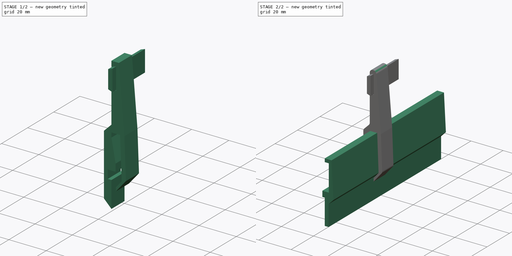
[diagram: build sequence overview — one tinted view per stage of 2, left to right]
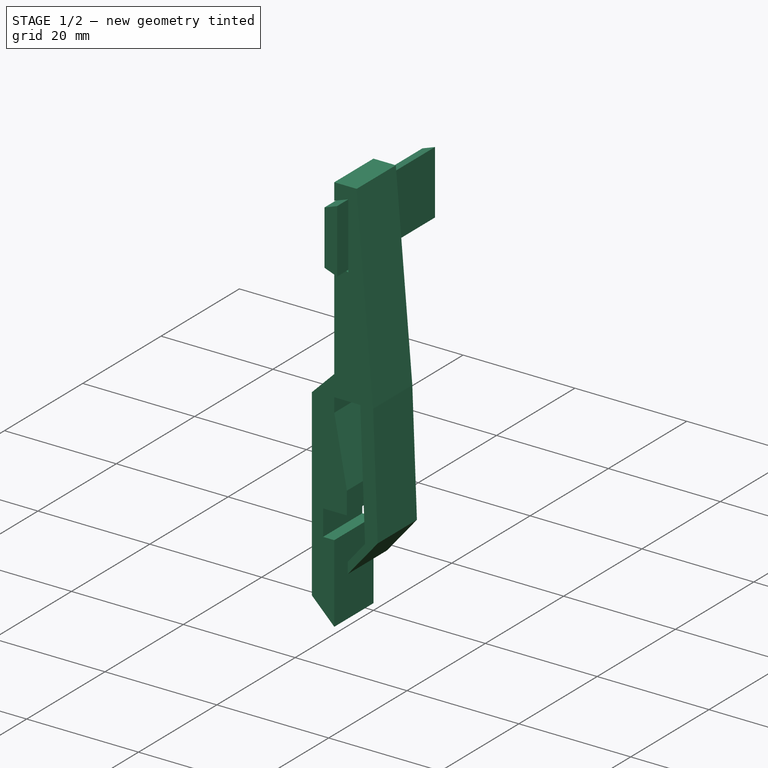
[diagram: stage 1 of 2 — iso view after this stage's code; geometry added in this stage tinted green]
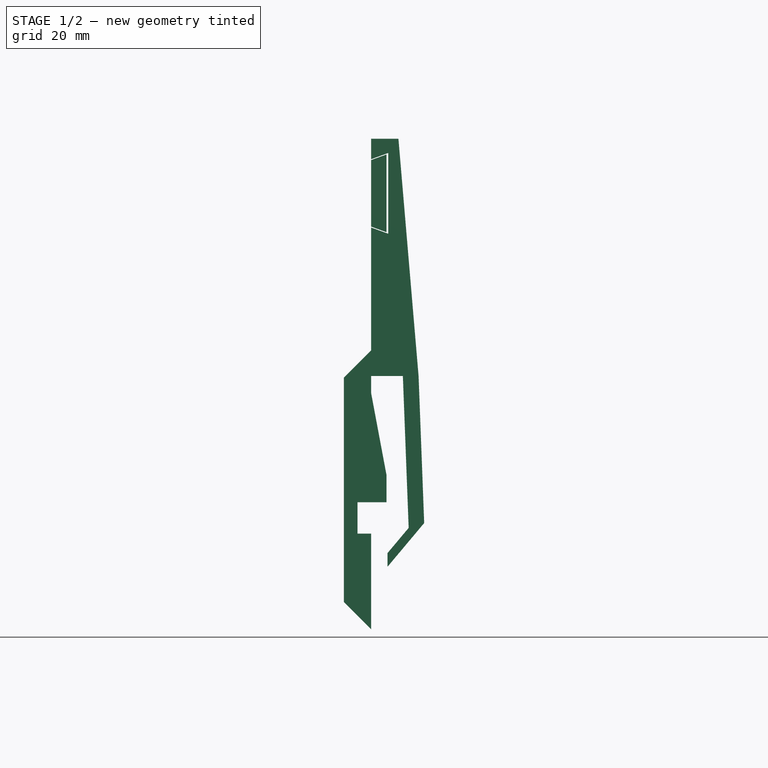
[diagram: stage 1 of 2 — front view after this stage's code; geometry added in this stage tinted green]
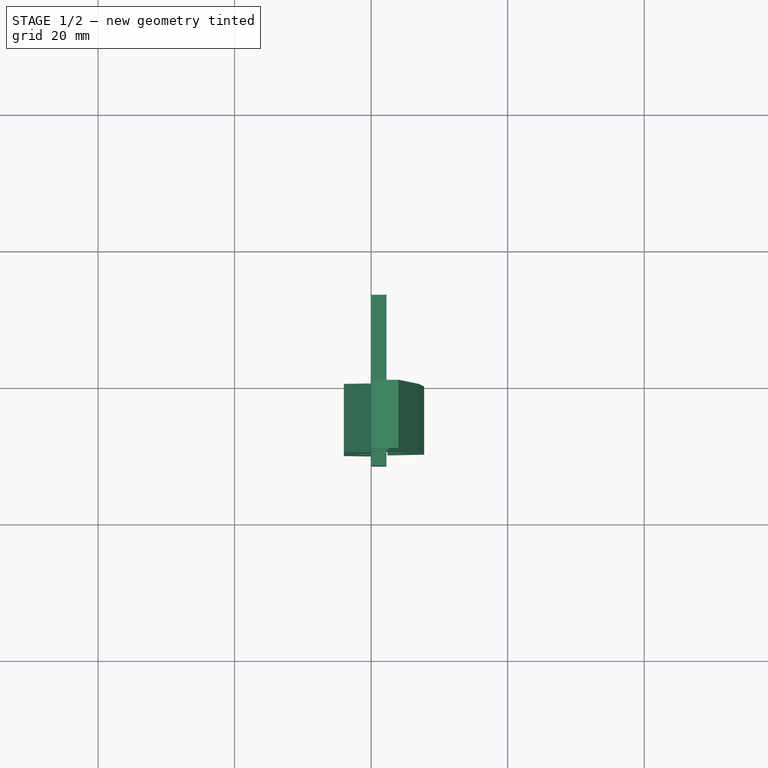
[diagram: stage 1 of 2 — top view after this stage's code; geometry added in this stage tinted green]
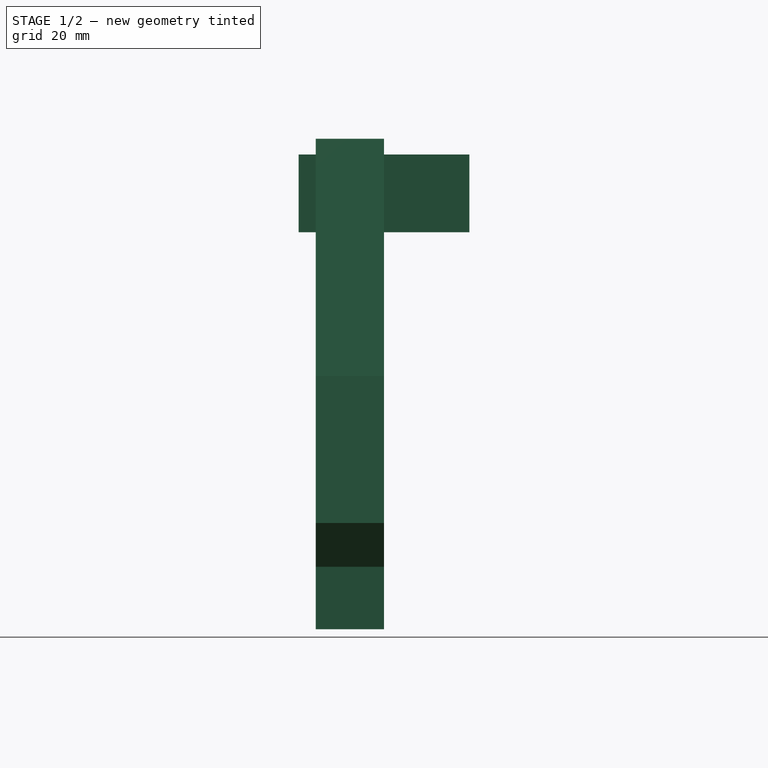
[diagram: stage 1 of 2 — right view after this stage's code; geometry added in this stage tinted green]
FCSTD DOCUMENT  (FreeCAD 0.19R)
Label: FridgeFence
License: All rights reserved
LicenseURL: http://en.wikipedia.org/wiki/All_rights_reserved
objects: Sketcher::SketchObject×3, PartDesign::Pad×3, PartDesign::Body×3, App::Part×3, PartDesign::Fillet×1
note: 14 computed .brp shape members not serialized (recipe doc carries the construction recipe); baked Part::Feature solids carry a one-line shape summary decoded from their .brp

FEATURE [PartDesign::Body] Body
  Group = -> [Sketch,Pad]
  Origin = -> Origin001
  Tip = -> Pad
FEATURE [App::Part] Part  label="Fridge"
  Group = -> [Body]
  Origin = -> Origin
FEATURE [Sketcher::SketchObject] Sketch001
  FullyConstrained = true
  MapMode = 5
  Placement = pos=(0,0,0) rot=(1,0,0;1.5708rad)
  Support = -> [XZ_Plane003]
  sketch-geometry (23):
    g0: LineSegment StartX=4.65 StartY=0.25 StartZ=0 EndX=0 EndY=0.25 EndZ=0
    g1: LineSegment StartX=0 StartY=0.25 StartZ=0 EndX=0 EndY=-2.25 EndZ=0
    g2: LineSegment StartX=2.25 StartY=-18.25 StartZ=0 EndX=-2 EndY=-18.25 EndZ=0
    g3: LineSegment StartX=-2 StartY=-18.25 StartZ=0 EndX=-2 EndY=-22.85 EndZ=0
    g4: LineSegment StartX=-2 StartY=-22.85 StartZ=0 EndX=0 EndY=-22.85 EndZ=0
    g5: LineSegment StartX=0 StartY=-22.85 StartZ=0 EndX=0 EndY=-36.85 EndZ=0
    g6: LineSegment StartX=4.65 StartY=0.25 StartZ=0 EndX=5.5 EndY=-22 EndZ=0
    g7: LineSegment StartX=5.5 StartY=-22 StartZ=0 EndX=2.4 EndY=-25.6944 EndZ=0
    g8: LineSegment StartX=2.4 StartY=-25.6944 StartZ=0 EndX=2.4 EndY=-27.6944 EndZ=0
    g9: LineSegment StartX=2.4 StartY=-27.6944 StartZ=0 EndX=7.77292 EndY=-21.2912 EndZ=0
    g10: LineSegment StartX=7.77292 StartY=-21.2912 StartZ=0 EndX=6.95 EndY=0.25 EndZ=0
    g11: LineSegment StartX=6.95 StartY=0.25 StartZ=0 EndX=4 EndY=35 EndZ=0
    g12: LineSegment StartX=4 StartY=35 StartZ=0 EndX=0 EndY=35 EndZ=0
    g13: LineSegment StartX=0 StartY=35 StartZ=0 EndX=0 EndY=32 EndZ=0
    g14: LineSegment StartX=0 StartY=32 StartZ=0 EndX=2.5 EndY=32.9099 EndZ=0
    g15: LineSegment StartX=2.5 StartY=32.9099 StartZ=0 EndX=2.5 EndY=21.0901 EndZ=0
    g16: LineSegment StartX=2.5 StartY=21.0901 StartZ=0 EndX=0 EndY=22 EndZ=0
    g17: LineSegment StartX=0 StartY=22 StartZ=0 EndX=0 EndY=4 EndZ=0
    g18: LineSegment StartX=0 StartY=4 StartZ=0 EndX=-4 EndY=9e-16 EndZ=0
    g19: LineSegment StartX=-4 StartY=9e-16 StartZ=0 EndX=-4 EndY=-32.85 EndZ=0
    g20: LineSegment StartX=-4 StartY=-32.85 StartZ=0 EndX=0 EndY=-36.85 EndZ=0
    g21: LineSegment StartX=0 StartY=-2.25 StartZ=0 EndX=2.25 EndY=-14.25 EndZ=0
    g22: LineSegment StartX=2.25 StartY=-18.25 StartZ=0 EndX=2.25 EndY=-14.25 EndZ=0
  constraints (69):
    c: Horizontal(g0)
    c: Coincident(g1,g0)
    c: Vertical(g1)
    c: Horizontal(g2)
    c: Coincident(g3,g2)
    c: Vertical(g3)
    c: Coincident(g4,g3)
    c: Horizontal(g4)
    c: Coincident(g5,g4)
    c: Vertical(g5)
    c: Coincident(g6,g0)
    c: Coincident(g7,g6)
    c: Coincident(g8,g7)
    c: Vertical(g8)
    c: Coincident(g9,g8)
    c: Coincident(g10,g9)
    c: Coincident(g11,g10)
    c: Coincident(g12,g11)
    c: PointOnObject(g12,g-2)
    c: Coincident(g13,g12)
    c: Vertical(g13)
    c: Coincident(g14,g13)
    c: Coincident(g15,g14)
    c: Vertical(g15)
    c: Coincident(g16,g15)
    c: PointOnObject(g16,g-2)
    c: Coincident(g17,g16)
    c: Vertical(g17)
    c: Coincident(g18,g17)
    c: PointOnObject(g18,g-1)
    c: Coincident(g19,g18)
    c: Vertical(g19)
    c: Coincident(g20,g19)
    c: Coincident(g20,g5)
    c: DistanceY(g1,g1) = 2.5
    c: DistanceY(g-1,g0) = 0.25
    c: Angle(g5,g20) = 0.785398
    c: Angle(g19,g18) = 2.35619
    c: DistanceY(g6,g-1) = 22
    c: DistanceX(g-1,g6) = 5.5
    c: Coincident(g21,g1)
    c: Coincident(g22,g2)
    c: Coincident(g22,g21)
    c: Vertical(g22)
    c: DistanceY(g22,g22) = 4
    c: DistanceY(g3,g3) = 4.6
    c: DistanceX(g5,g8) = 2.4
    c: DistanceX(g-1,g5) = 0
    c: DistanceX(g0,g-1) = 0
    c: Parallel(g10,g6)
    c: Parallel(g9,g7)
    c: DistanceY(g8,g8) = 2
    c: DistanceX(g19,g3) = 2
    c: DistanceY(g5,g5) = 14
    c: Angle(g9,g8) = 0.698132
    c: DistanceX(g-1,g2) = 2.25
    c: DistanceY(g2,g-1) = 18.25
    c: DistanceX(g0,g0) = 4.65
    c: DistanceX(g0,g10) = 2.3
    c: DistanceY(g0,g10) = 0
    c: DistanceX(g3,g-1) = 2
    c: DistanceY(g-1,g12) = 35
    c: DistanceY(g13,g12) = 3
    c: Angle(g14,g13) = 1.22173
    c: Angle(g17,g16) = 1.22173
    c: DistanceX(g13,g14) = 2.5
    c: Horizontal(g12)
    c: DistanceY(g16,g13) = 10
    c: DistanceX(g12,g12) = 4
FEATURE [PartDesign::Pad] Pad001
  Direction = (1,1,1)
  Length = 10
  Length2 = 100
  Placement = pos=(0,0,0) rot=(1,0,0;1.5708rad)
  Profile = -> Sketch001
  Type = 0
FEATURE [PartDesign::Body] Body001
  Group = -> [Sketch001,Pad001,Fillet]
  Origin = -> Origin003
  Tip = -> Fillet
FEATURE [App::Part] Part001  label="Support"
  Group = -> [Body001]
  Origin = -> Origin002
FEATURE [Sketcher::SketchObject] Sketch002
  FullyConstrained = true
  MapMode = 5
  Placement = pos=(0,0,0) rot=(1,0,0;1.5708rad)
  Support = -> [XZ_Plane]
  sketch-geometry (5):
    g0: LineSegment StartX=0 StartY=31.88 StartZ=0 EndX=2.25 EndY=32.6989 EndZ=0
    g1: LineSegment StartX=2.25 StartY=32.6989 StartZ=0 EndX=2.25 EndY=21.3111 EndZ=0
    g2: LineSegment StartX=2.25 StartY=21.3111 StartZ=0 EndX=0 EndY=22.13 EndZ=0
    g3: LineSegment StartX=0 StartY=31.88 StartZ=0 EndX=0 EndY=22.13 EndZ=0
    g4: LineSegment StartX=0 StartY=35 StartZ=0 EndX=10 EndY=35 EndZ=0
  constraints (16):
    c: PointOnObject(g0,g-2)
    c: Coincident(g1,g0)
    c: Vertical(g1)
    c: Coincident(g3,g0)
    c: Coincident(g3,g2)
    c: Vertical(g3)
    c: Horizontal(g4)
    c: DistanceX(g4,g4) = 10
    c: DistanceX(g4,g-1) = 0
    c: DistanceY(g-1,g4) = 35
    c: DistanceY(g0,g4) = 3.12
    c: DistanceY(g3,g3) = 9.75
    c: DistanceX(g0,g0) = 2.25
    c: Angle(g4,g0) = 0.349066
    c: Angle(g2,g4) = 0.349066
    c: Coincident(g1,g2)
FEATURE [PartDesign::Pad] Pad002
  Direction = (1,1,1)
  Length = 25
  Length2 = 100
  Midplane = true
  Placement = pos=(0,0,0) rot=(1,0,0;1.5708rad)
  Profile = -> Sketch002
  Type = 0
FEATURE [PartDesign::Body] Body002
  Group = -> [Sketch002,Pad002]
  Origin = -> Origin005
  Tip = -> Pad002
FEATURE [App::Part] Part002  label="Bar"
  Group = -> [Body002]
  Origin = -> Origin004
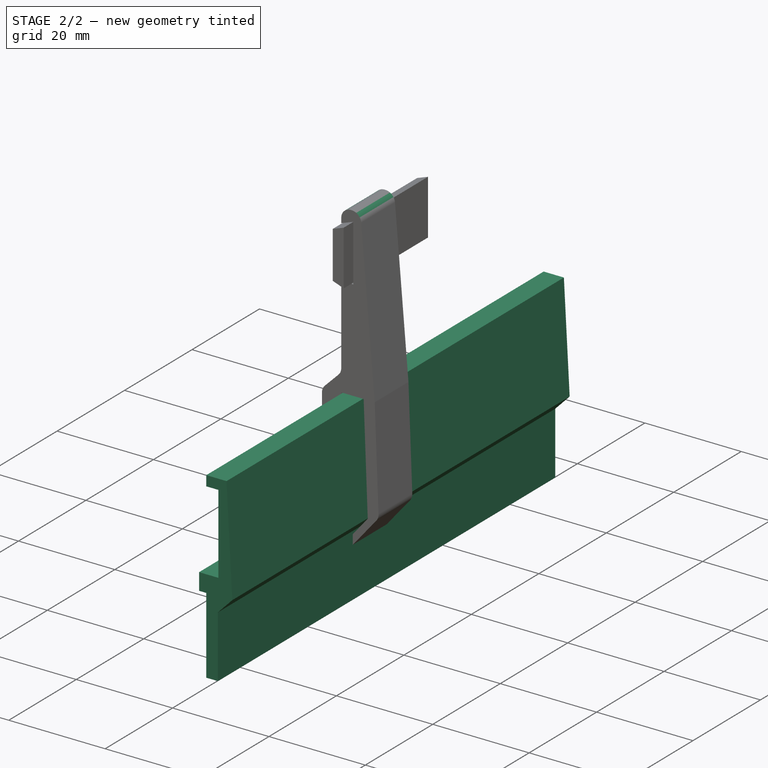
[diagram: stage 2 of 2 — iso view after this stage's code; geometry added in this stage tinted green]
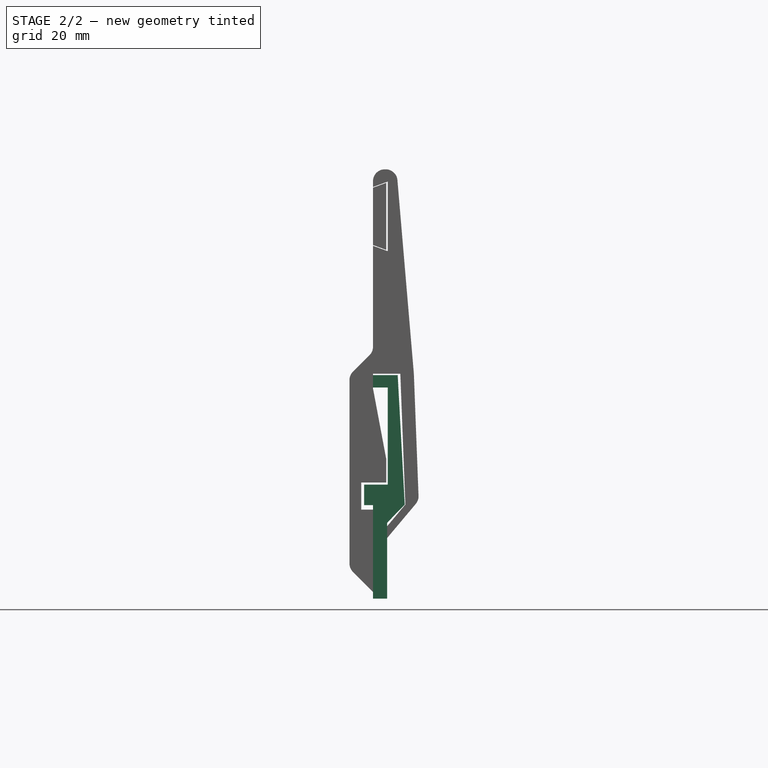
[diagram: stage 2 of 2 — front view after this stage's code; geometry added in this stage tinted green]
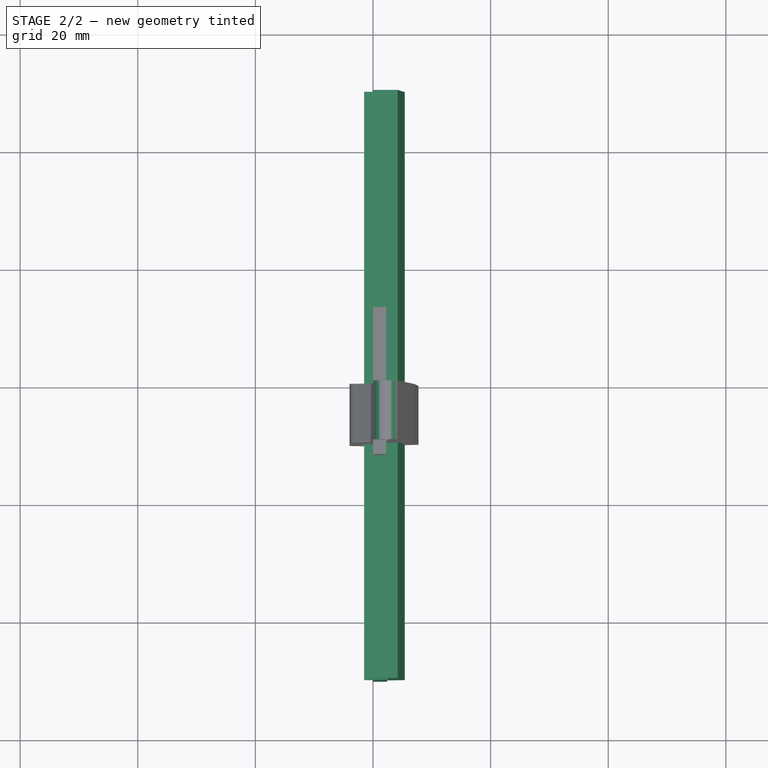
[diagram: stage 2 of 2 — top view after this stage's code; geometry added in this stage tinted green]
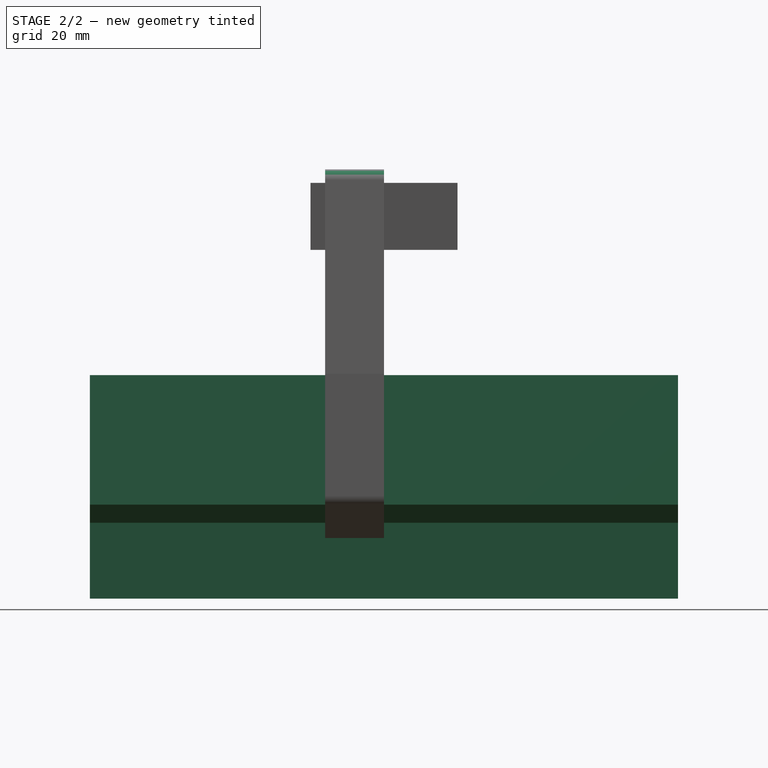
[diagram: stage 2 of 2 — right view after this stage's code; geometry added in this stage tinted green]
FEATURE [Sketcher::SketchObject] Sketch
  FullyConstrained = true
  MapMode = 5
  Placement = pos=(0,0,0) rot=(1,0,0;1.5708rad)
  Support = -> [XZ_Plane001]
  sketch-geometry (12):
    g0: LineSegment StartX=0 StartY=0 StartZ=0 EndX=0 EndY=-2.1 EndZ=0
    g1: LineSegment StartX=0 StartY=-2.1 StartZ=0 EndX=2.5 EndY=-2.1 EndZ=0
    g2: LineSegment StartX=2.5 StartY=-2.1 StartZ=0 EndX=2.5 EndY=-18.6 EndZ=0
    g3: LineSegment StartX=2.5 StartY=-18.6 StartZ=0 EndX=-1.5 EndY=-18.6 EndZ=0
    g4: LineSegment StartX=-1.5 StartY=-18.6 StartZ=0 EndX=-1.5 EndY=-22.1 EndZ=0
    g5: LineSegment StartX=-1.5 StartY=-22.1 StartZ=0 EndX=0 EndY=-22.1 EndZ=0
    g6: LineSegment StartX=0 StartY=-22.1 StartZ=0 EndX=0 EndY=-38 EndZ=0
    g7: LineSegment StartX=0 StartY=-38 StartZ=0 EndX=2.4 EndY=-38 EndZ=0
    g8: LineSegment StartX=2.4 StartY=-38 StartZ=0 EndX=2.4 EndY=-25.1 EndZ=0
    g9: LineSegment StartX=2.4 StartY=-25.1 StartZ=0 EndX=5.4 EndY=-22 EndZ=0
    g10: LineSegment StartX=5.4 StartY=-22 StartZ=0 EndX=4.2 EndY=0 EndZ=0
    g11: LineSegment StartX=4.2 StartY=0 StartZ=0 EndX=0 EndY=0 EndZ=0
  constraints (35):
    c: Coincident(g0,g-1)
    c: Vertical(g0)
    c: Coincident(g1,g0)
    c: Coincident(g2,g1)
    c: Vertical(g2)
    c: Coincident(g3,g2)
    c: Horizontal(g3)
    c: Coincident(g4,g3)
    c: Coincident(g5,g4)
    c: Coincident(g6,g5)
    c: Vertical(g6)
    c: Coincident(g7,g6)
    c: Horizontal(g7)
    c: Coincident(g8,g7)
    c: Vertical(g8)
    c: Coincident(g9,g8)
    c: Coincident(g10,g9)
    c: PointOnObject(g10,g-1)
    c: Coincident(g11,g10)
    c: Coincident(g11,g0)
    c: DistanceY(g8,g10) = 25.1
    c: DistanceY(g0,g0) = 2.1
    c: Horizontal(g1)
    c: DistanceX(g1,g1) = 2.5
    c: DistanceY(g2,g0) = 18.6
    c: DistanceX(g3,g3) = 4
    c: Vertical(g4)
    c: DistanceY(g4,g4) = 3.5
    c: Horizontal(g5)
    c: DistanceX(g5,g5) = 1.5
    c: DistanceX(g7,g7) = 2.4
    c: DistanceX(g11,g11) = 4.2
    c: DistanceX(g8,g9) = 3
    c: DistanceY(g9,g10) = 22
    c: DistanceY(g7,g0) = 38
FEATURE [PartDesign::Pad] Pad
  Direction = (1,1,1)
  Length = 100
  Length2 = 100
  Midplane = true
  Placement = pos=(0,0,0) rot=(1,0,0;1.5708rad)
  Profile = -> Sketch
  Type = 0
FEATURE [PartDesign::Fillet] Fillet
  Base = -> Pad001 [Edge53,Edge50,Edge32,Edge35,Edge29,Edge59]
  BaseFeature = -> Pad001
  Placement = pos=(0,0,0) rot=(1,0,0;1.5708rad)
  Radius = 2
  SupportTransform = false
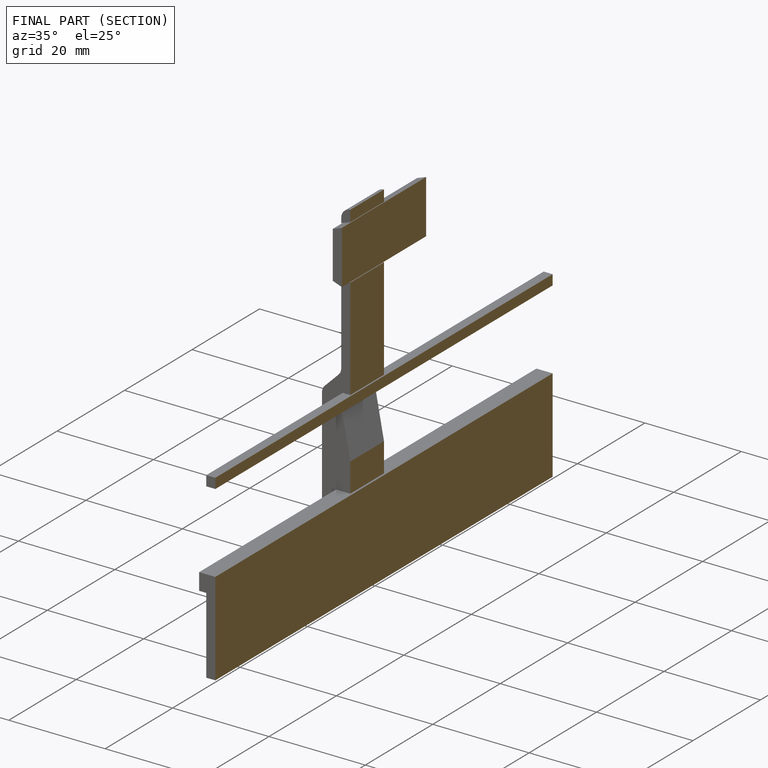
[diagram: finished part — half-section view (interior)]
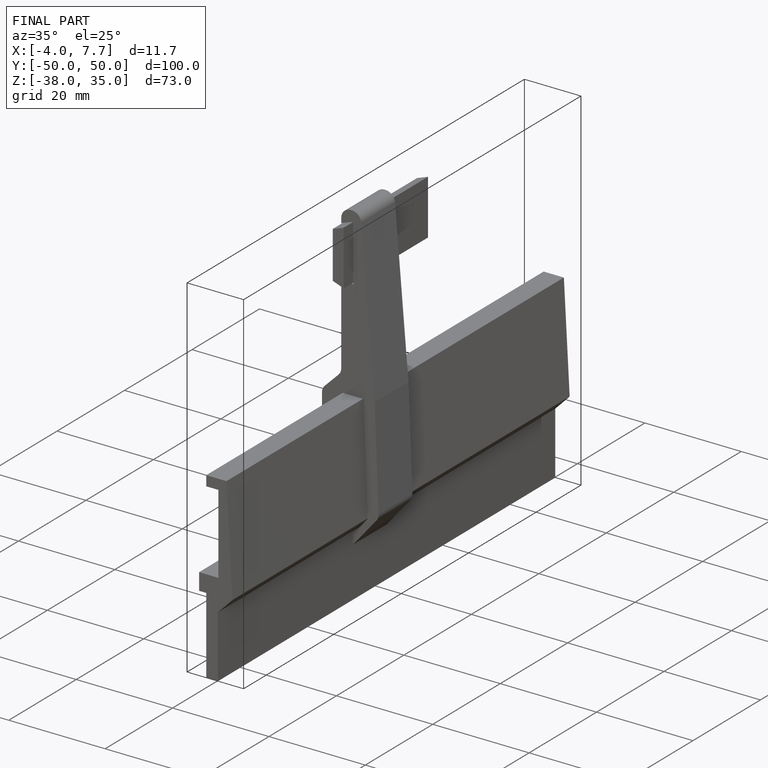
[diagram: finished part — iso view with bounding-box wireframe]
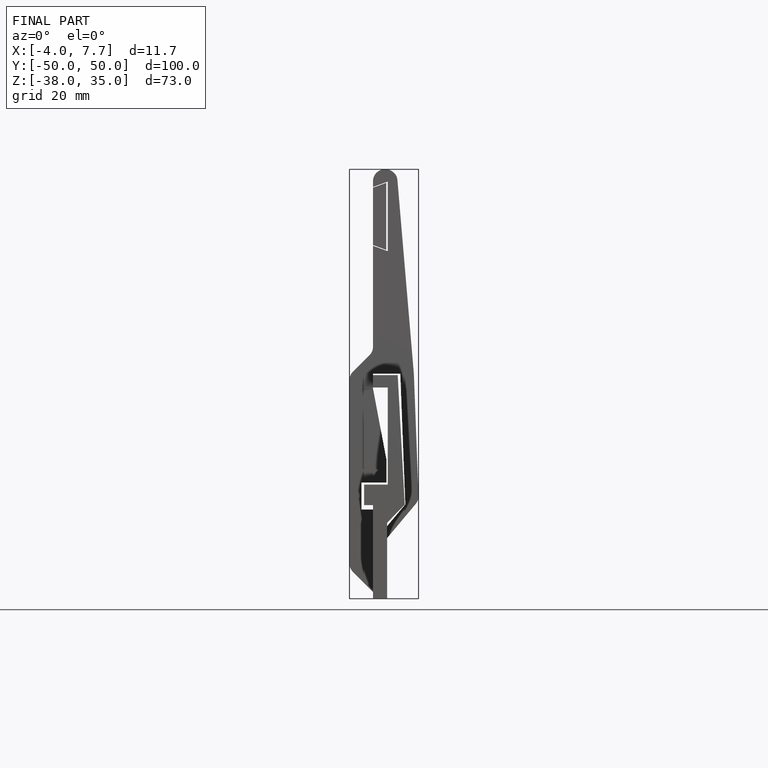
[diagram: finished part — front view with bounding-box wireframe]
